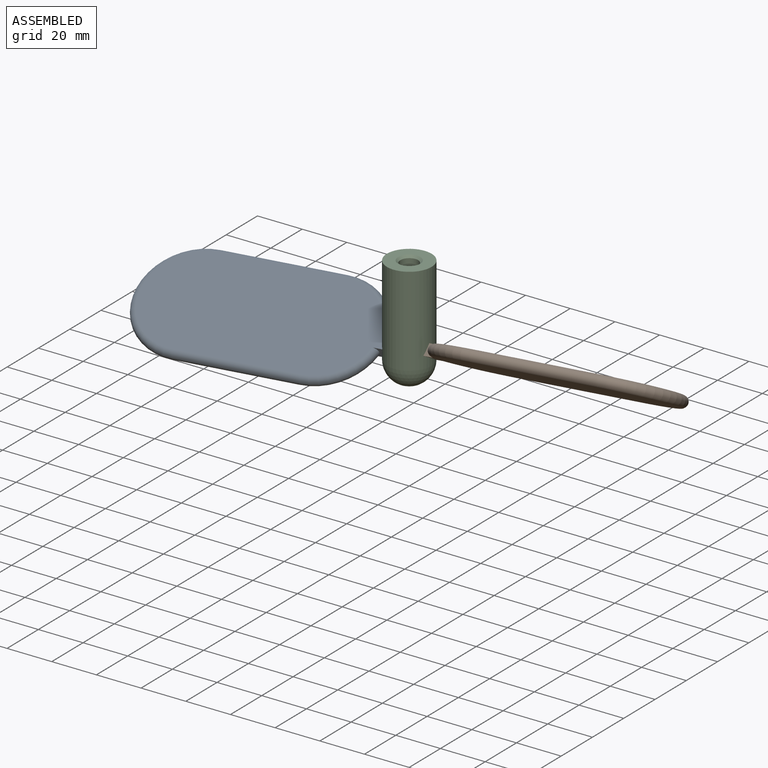
[diagram: assembled view]
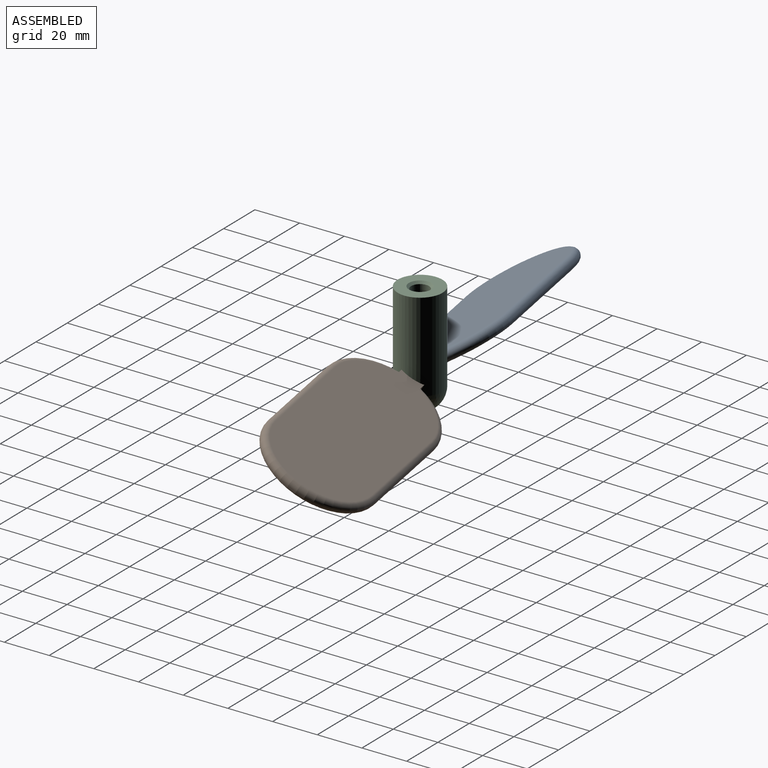
[diagram: assembled view, second angle]
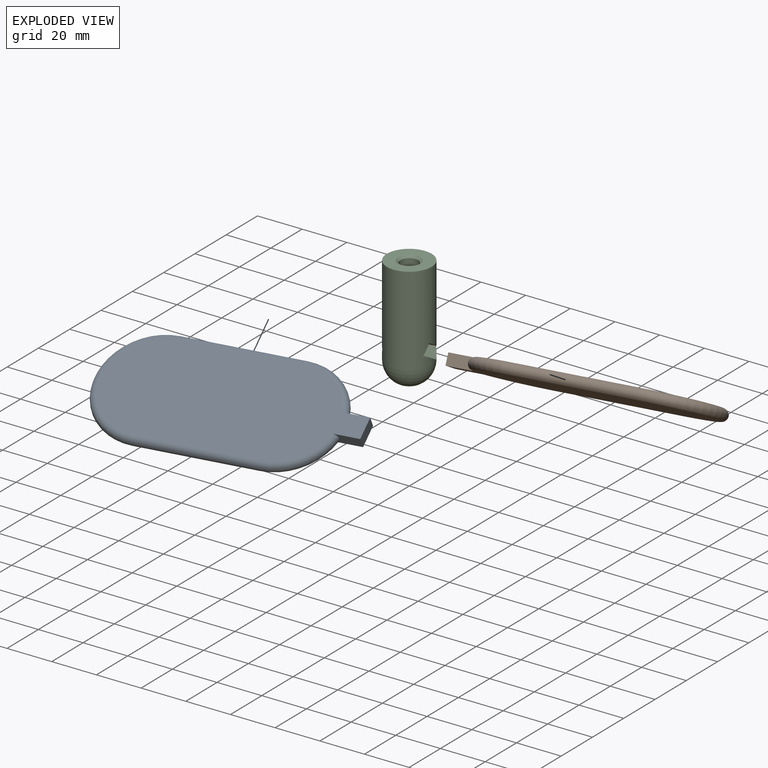
[diagram: exploded view]
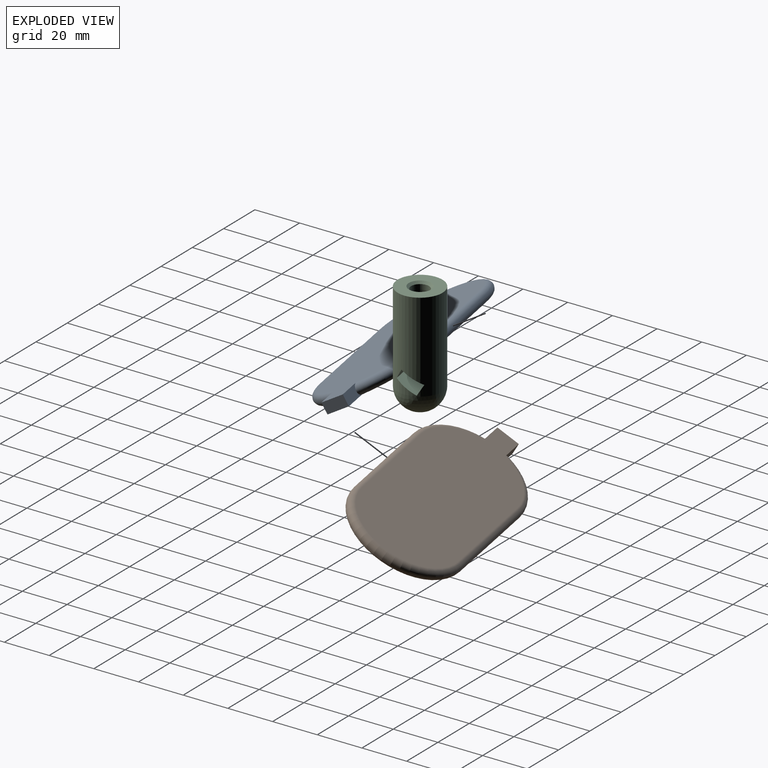
[diagram: exploded view, second angle]
ASSEMBLY  parts=3 mates=2
PART A: 10 faces, bbox 54.1x112.1x5 mm
  f0: plane 11.56x5mm, normal (1,0,0), area 47.7mm2, adj f1,f3,f4,f9
  f1: plane 10x5mm, normal (0,1,0), area 50mm2, adj f0,f2,f3,f4
  f2: plane 11.56x5mm, normal (-1,0,0), area 47.7mm2, adj f1,f3,f4,f5
  f3: plane 107.5x45mm, normal (0,0,1), area 4020mm2, adj f0,f1,f2,f5,f6,f7,f8,f9
  f4: plane 107.5x45mm, normal (0,0,-1), area 4020mm2, adj f0,f1,f2,f5,f6,f7,f8,f9
  f5: torus R=22.5mm, axis (0,0,1), area 257.7mm2, adj f2,f3,f4,f6
  f6: cylinder r=2.5mm len=51.51mm, axis (0,-1,0), area 404.5mm2, adj f3,f4,f5,f7
  f7: torus R=22.5mm, axis (0,0,1), area 594.4mm2, adj f3,f4,f6,f8
  f8: cylinder r=2.5mm len=51.51mm, axis (0,1,0), area 404.5mm2, adj f3,f4,f7,f9
  f9: torus R=22.5mm, axis (0,0,1), area 257.7mm2, adj f0,f3,f4,f8
PART B: same geometry as A
PART C: 16 faces, bbox 20x20x50 mm
  f0: plane 20x20mm, normal (0,0,1), area 235.6mm2, adj f12,f15
  f1: plane 9x8.66mm, normal (0,-0.5,0.87), area 85.9mm2, adj f2,f4,f5,f12
  f2: plane 8.51x4.33mm, normal (0,0.87,0.5), area 39.9mm2, adj f1,f3,f5,f12
  f3: plane 9x8.66mm, normal (0,0.5,-0.87), area 85.9mm2, adj f2,f4,f5,f12
  f4: plane 8.51x4.33mm, normal (0,-0.87,-0.5), area 39.9mm2, adj f1,f3,f5,f12
  f5: plane 11.16x9.33mm, normal (-1,0,0), area 50mm2, adj f1,f2,f3,f4
  f6: plane 9x8.66mm, normal (0,0.5,0.87), area 85.9mm2, adj f7,f9,f10,f12
  f7: plane 8.51x4.33mm, normal (0,-0.87,0.5), area 39.9mm2, adj f6,f8,f10,f12
  f8: plane 9x8.66mm, normal (0,-0.5,-0.87), area 85.9mm2, adj f7,f9,f10,f12
  f9: plane 8.51x4.33mm, normal (0,0.87,-0.5), area 39.9mm2, adj f6,f8,f10,f12
  f10: plane 11.16x9.33mm, normal (1,0,0), area 50mm2, adj f6,f7,f8,f9
  f11: sphere r=10mm, area 628.3mm2, adj f12
  f12: cylinder r=10mm len=40mm, axis (0,0,1), area 2409.5mm2, adj f0,f1,f2,f3,f4,f6,f7,f8
  f13: cylinder r=4mm len=29mm, axis (0,0,1), area 728.8mm2, adj f14,f15
  f14: plane 8x8mm, normal (0,0,1), area 50.3mm2, adj f13
  f15: cone r=4mm half-angle=45deg, axis (0,0,1), area 40mm2, adj f0,f13
PLACE A rot(axis=(0.25,0.29,-0.92),84.5deg) t=(-55.37,-8.49,12.83)mm
PLACE B rot(axis=(-0.25,0.21,0.94),103.2deg) t=(55.37,8.49,12.83)mm
PLACE C rot(axis=(0,0,-1),170deg) t=(0,0,0)mm
MATE fastened A.f2 <-> C.f9  axis (-0.15,0.85,0.5) through (-1.74,4.09,17.5)mm
MATE fastened B.f2 <-> C.f4  axis (0.15,-0.85,0.5) through (1.74,-4.09,17.5)mm
